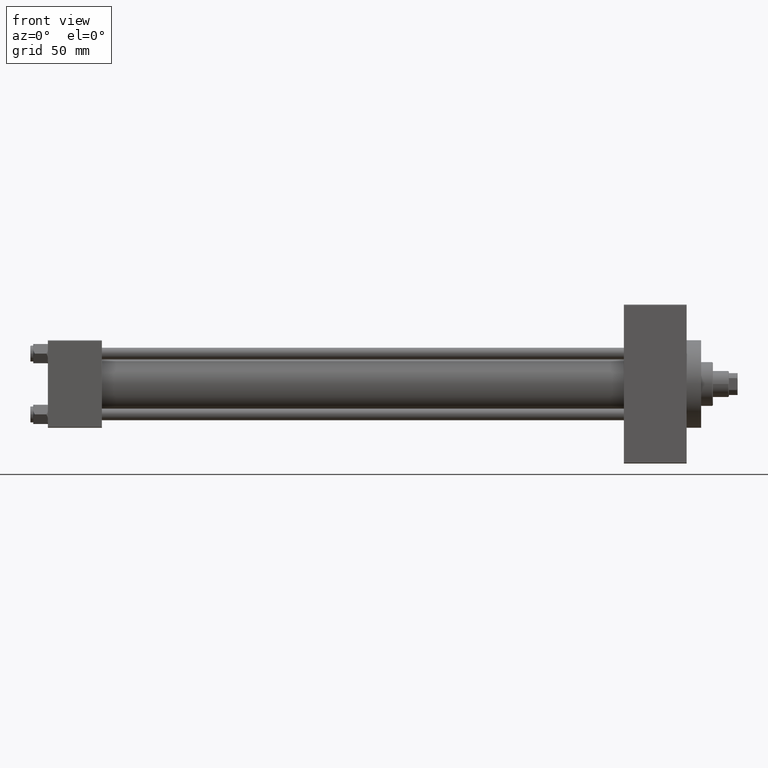
[diagram: clean part render]
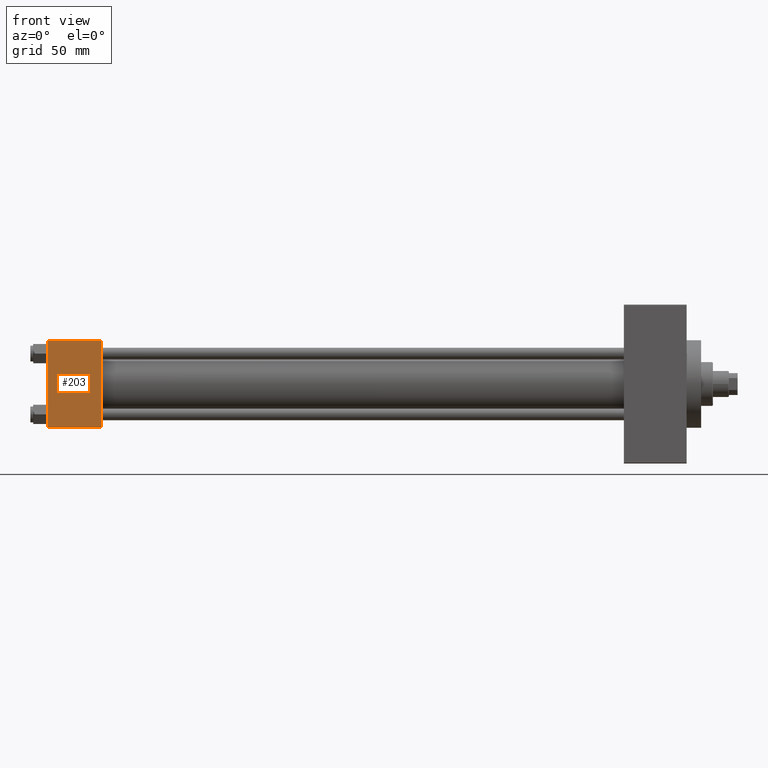
[diagram: same view with one face highlighted and labeled with its STEP entity id]
A machine part, front view. The second image highlights one B-rep face of the part: STEP entity #203.
In plain terms, the highlighted planar face has unit normal (0, 1, 0).
Its self-contained STEP definition (entity closure, byte-faithful):
#203 = ADVANCED_FACE ( 'NONE', ( #42706 ), #4798, .F. ) ;
#417 = ORIENTED_EDGE ( 'NONE', *, *, #18769, .T. ) ;
#810 = DIRECTION ( 'NONE',  ( -0.000000000000000000, 1.000000000000000000, 0.000000000000000000 ) ) ;
#2141 = DIRECTION ( 'NONE',  ( 0.000000000000000000, 0.000000000000000000, -1.000000000000000000 ) ) ;
#2294 = VECTOR ( 'NONE', #2141, 1000.000000000000000 ) ;
#2876 = LINE ( 'NONE', #36283, #2294 ) ;
#3224 = VERTEX_POINT ( 'NONE', #46913 ) ;
#3732 = DIRECTION ( 'NONE',  ( -1.000000000000000000, 0.000000000000000000, 0.000000000000000000 ) ) ;
#4798 = PLANE ( 'NONE',  #47908 ) ;
#8089 = LINE ( 'NONE', #11088, #31063 ) ;
#11088 = CARTESIAN_POINT ( 'NONE',  ( 37.00000000000000000, -30.00000000000000000, 29.99999999999999289 ) ) ;
#11173 = CARTESIAN_POINT ( 'NONE',  ( 0.000000000000000000, -30.00000000000000000, 29.49999999999999289 ) ) ;
#12255 = DIRECTION ( 'NONE',  ( 0.000000000000000000, -0.000000000000000000, 1.000000000000000000 ) ) ;
#15043 = EDGE_CURVE ( 'NONE', #43783, #44308, #33883, .T. ) ;
#18769 = EDGE_CURVE ( 'NONE', #44308, #3224, #2876, .T. ) ;
#19946 = DIRECTION ( 'NONE',  ( 1.000000000000000000, 0.000000000000000000, 0.000000000000000000 ) ) ;
#23299 = DIRECTION ( 'NONE',  ( 0.000000000000000000, 0.000000000000000000, -1.000000000000000000 ) ) ;
#23443 = LINE ( 'NONE', #30680, #49231 ) ;
#23977 = CARTESIAN_POINT ( 'NONE',  ( 37.00000000000000000, -30.00000000000000000, 29.99999999999999289 ) ) ;
#25905 = CARTESIAN_POINT ( 'NONE',  ( 37.00000000000000000, -30.00000000000000000, -29.50000000000001776 ) ) ;
#26628 = CARTESIAN_POINT ( 'NONE',  ( 37.00000000000000000, -30.00000000000000000, 29.49999999999999289 ) ) ;
#27713 = CARTESIAN_POINT ( 'NONE',  ( 37.00000000000000000, -30.00000000000000000, 29.49999999999999289 ) ) ;
#28138 = ORIENTED_EDGE ( 'NONE', *, *, #15043, .T. ) ;
#29532 = ORIENTED_EDGE ( 'NONE', *, *, #47825, .F. ) ;
#30680 = CARTESIAN_POINT ( 'NONE',  ( 37.00000000000000000, -30.00000000000000000, -29.50000000000001776 ) ) ;
#31017 = VERTEX_POINT ( 'NONE', #25905 ) ;
#31063 = VECTOR ( 'NONE', #23299, 1000.000000000000000 ) ;
#31189 = EDGE_LOOP ( 'NONE', ( #417, #36298, #29532, #28138 ) ) ;
#33883 = LINE ( 'NONE', #26628, #34767 ) ;
#34767 = VECTOR ( 'NONE', #3732, 1000.000000000000000 ) ;
#36283 = CARTESIAN_POINT ( 'NONE',  ( 0.000000000000000000, -30.00000000000000000, 29.99999999999999289 ) ) ;
#36298 = ORIENTED_EDGE ( 'NONE', *, *, #42903, .T. ) ;
#42706 = FACE_OUTER_BOUND ( 'NONE', #31189, .T. ) ;
#42903 = EDGE_CURVE ( 'NONE', #3224, #31017, #23443, .T. ) ;
#43783 = VERTEX_POINT ( 'NONE', #27713 ) ;
#44308 = VERTEX_POINT ( 'NONE', #11173 ) ;
#46913 = CARTESIAN_POINT ( 'NONE',  ( 0.000000000000000000, -30.00000000000000000, -29.50000000000001776 ) ) ;
#47825 = EDGE_CURVE ( 'NONE', #43783, #31017, #8089, .T. ) ;
#47908 = AXIS2_PLACEMENT_3D ( 'NONE', #23977, #810, #12255 ) ;
#49231 = VECTOR ( 'NONE', #19946, 1000.000000000000000 ) ;